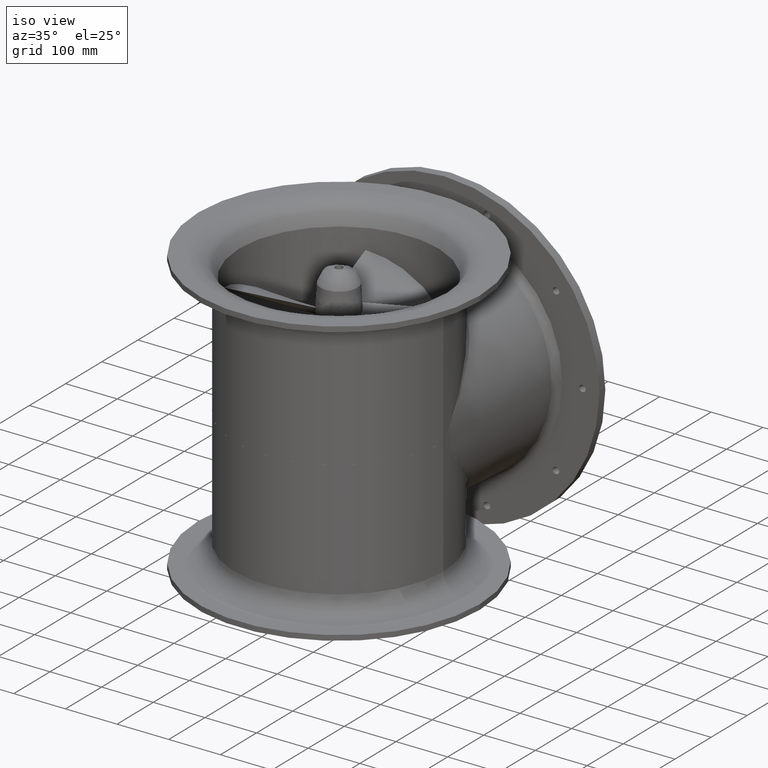
[diagram: clean part render]
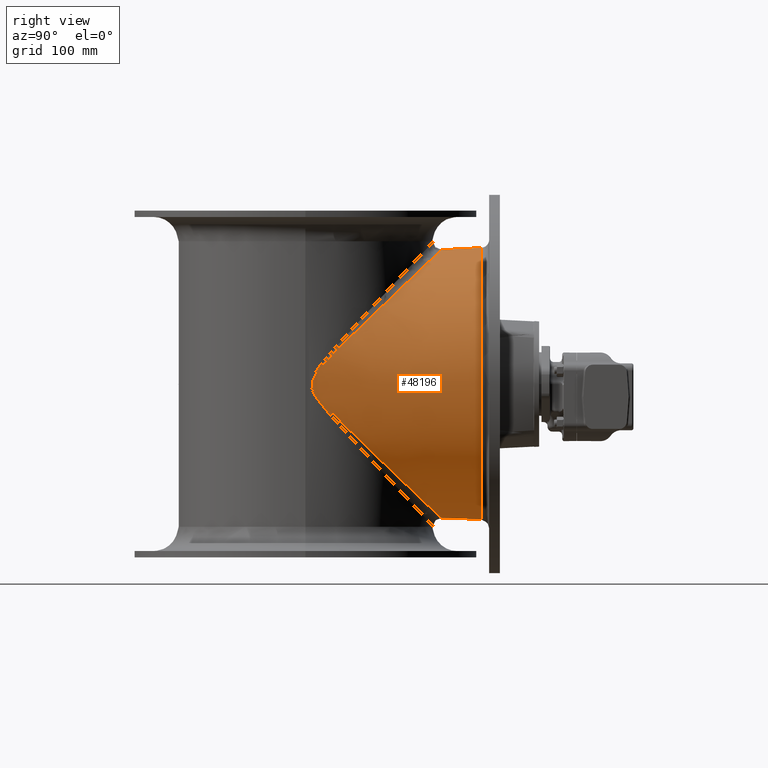
[diagram: tour spotlight — one face highlighted and labeled with its STEP entity id]
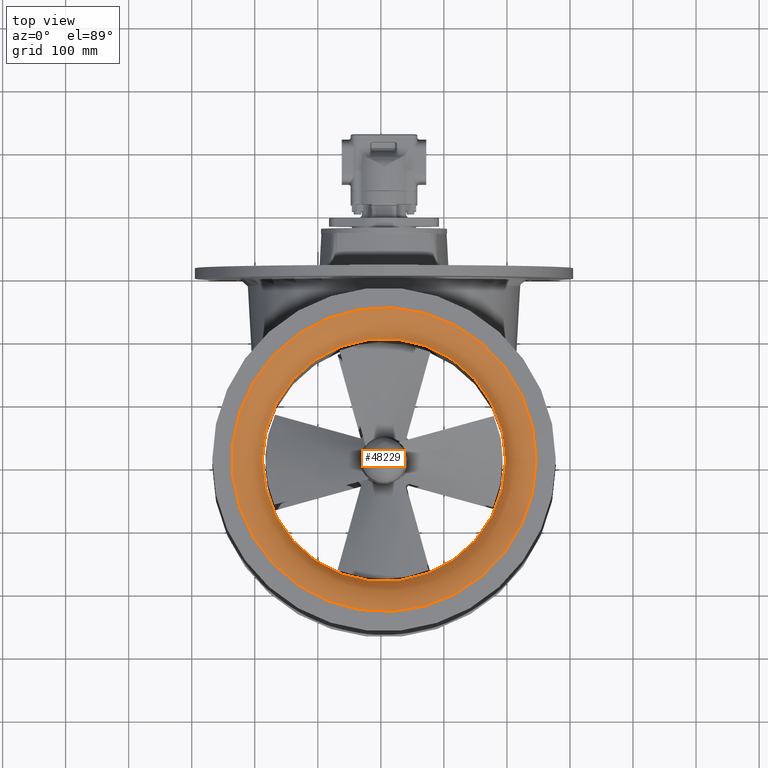
[diagram: tour spotlight — one face highlighted and labeled with its STEP entity id]
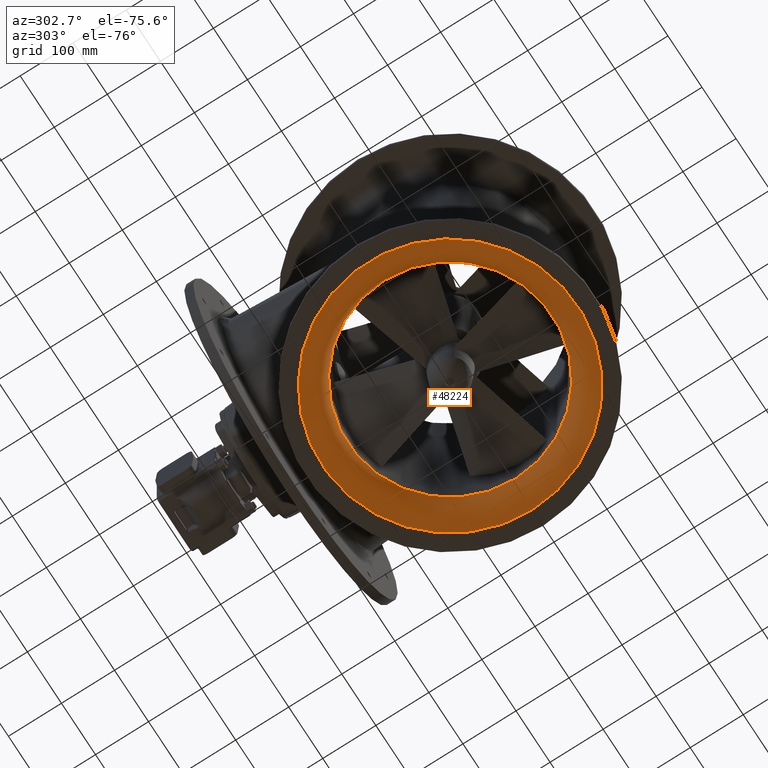
[diagram: tour spotlight — one face highlighted and labeled with its STEP entity id]
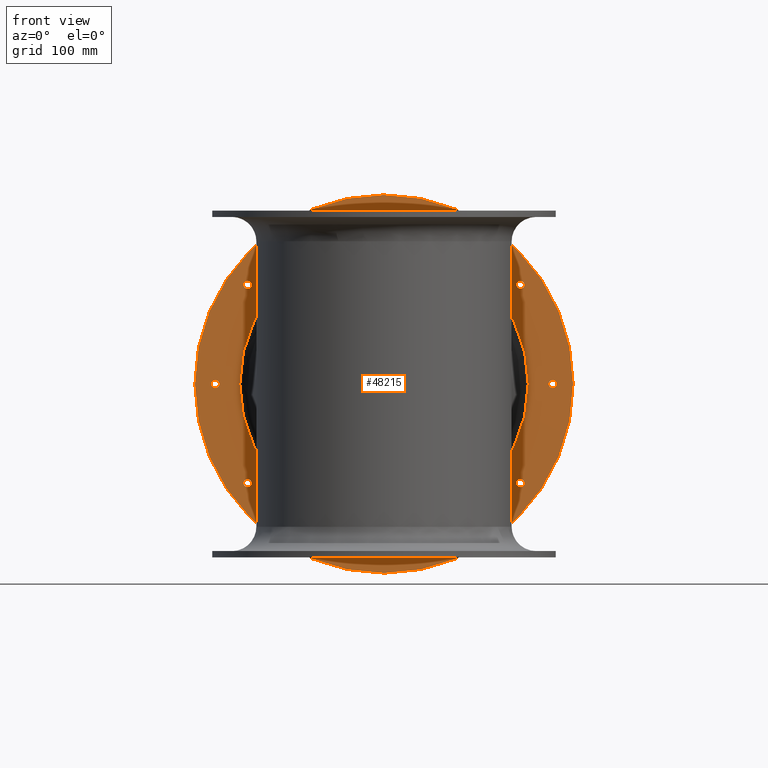
[diagram: tour spotlight — one face highlighted and labeled with its STEP entity id]
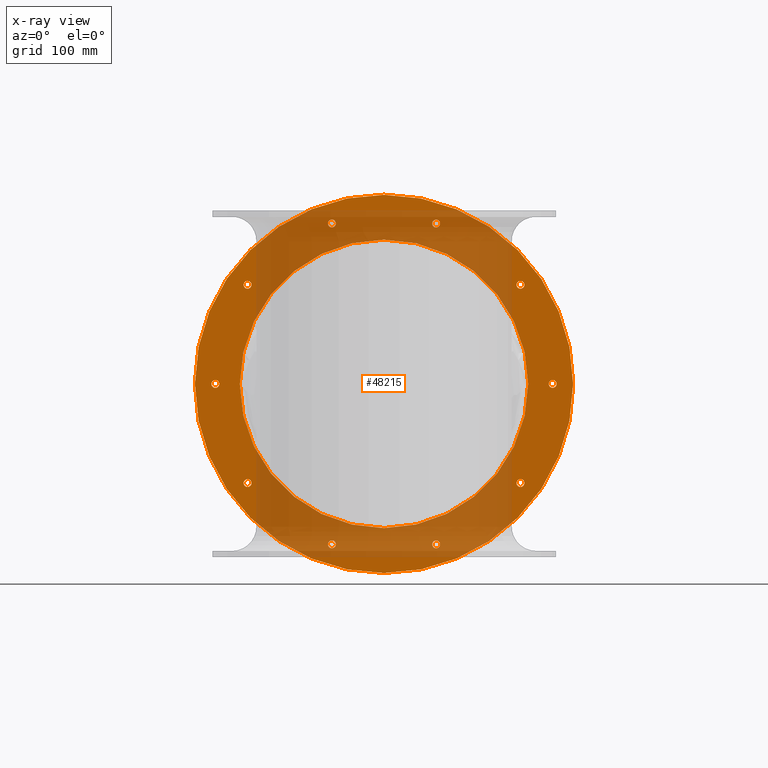
[diagram: x-ray of the same camera — body ghosted, this tour face saturated]
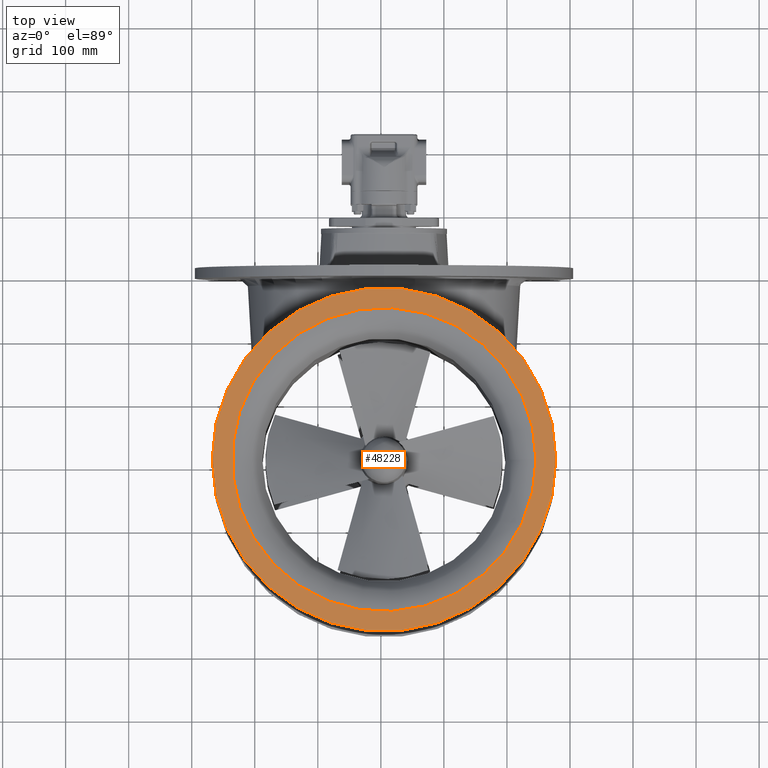
[diagram: tour spotlight — one face highlighted and labeled with its STEP entity id]
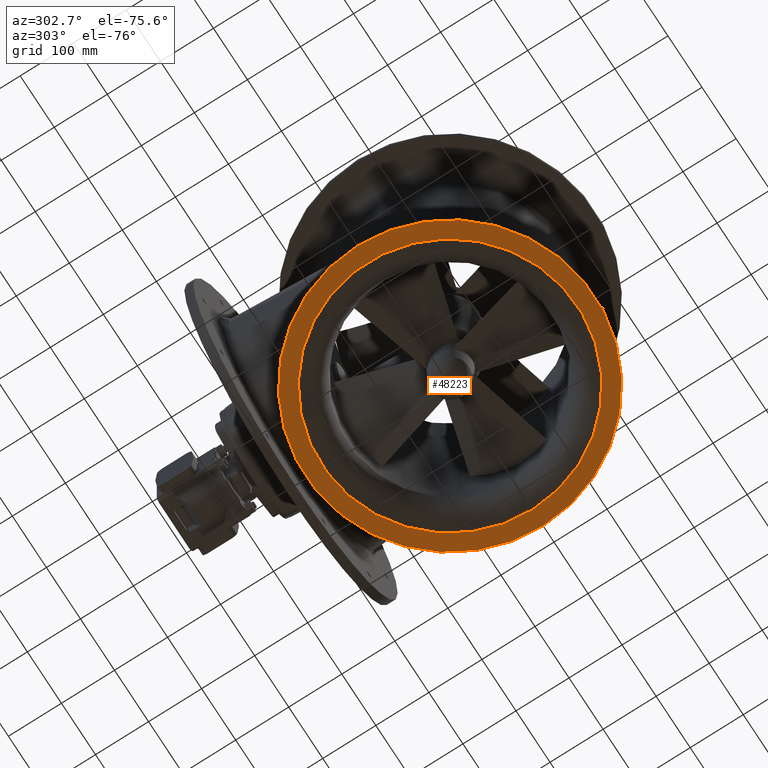
[diagram: tour spotlight — one face highlighted and labeled with its STEP entity id]
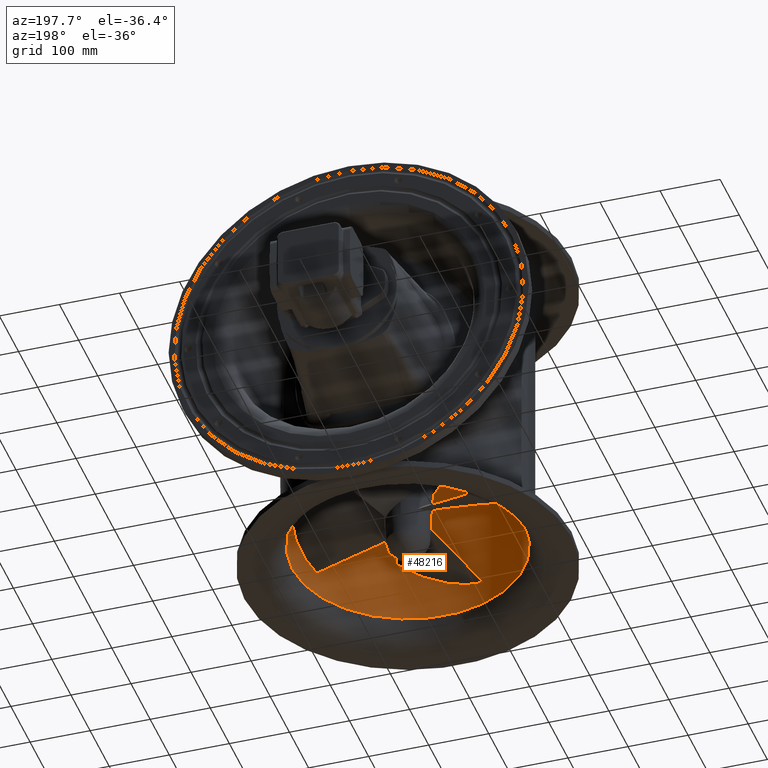
[diagram: tour spotlight — one face highlighted and labeled with its STEP entity id]
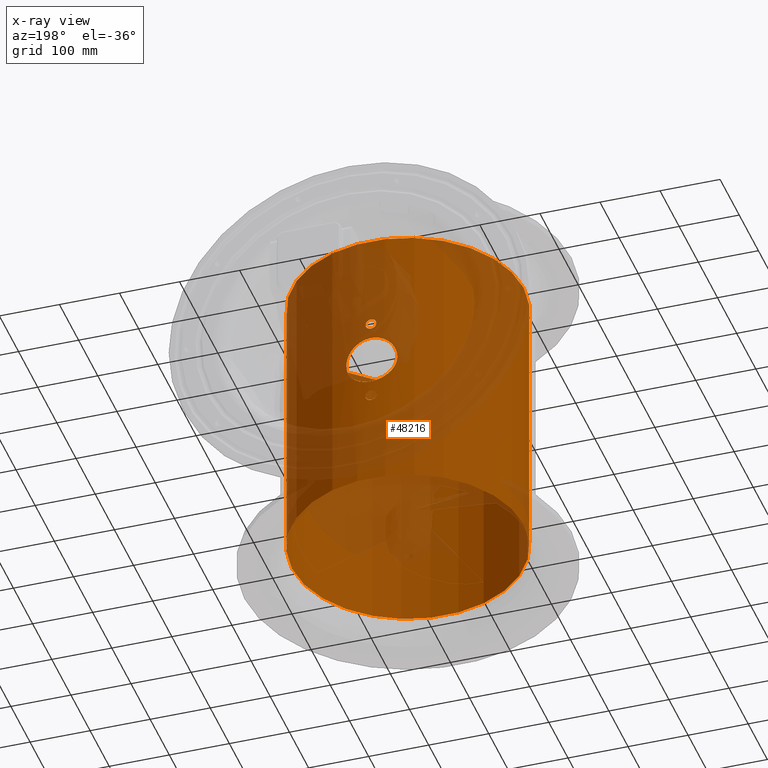
[diagram: x-ray of the same camera — body ghosted, this tour face saturated]
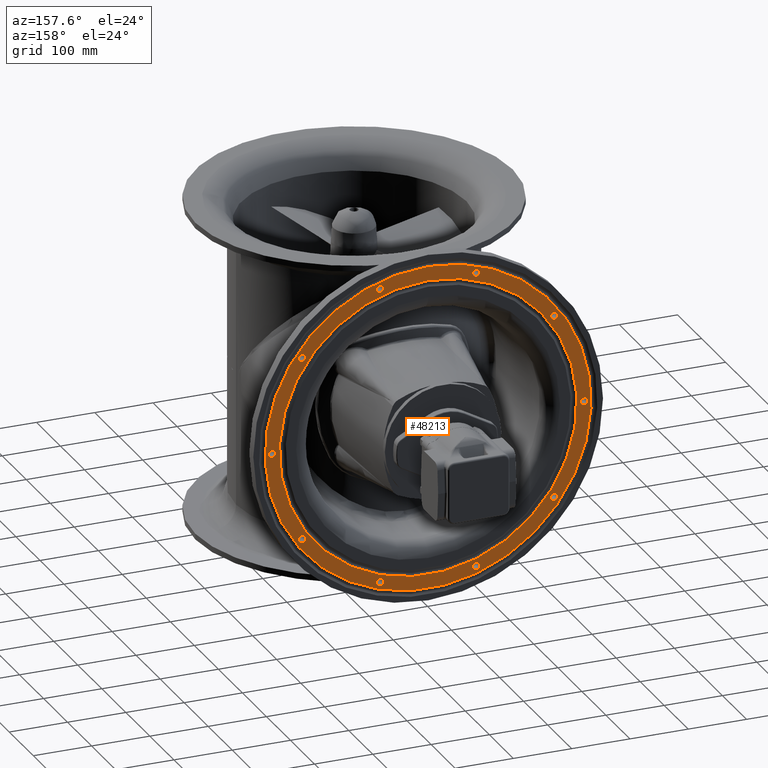
[diagram: tour spotlight — one face highlighted and labeled with its STEP entity id]
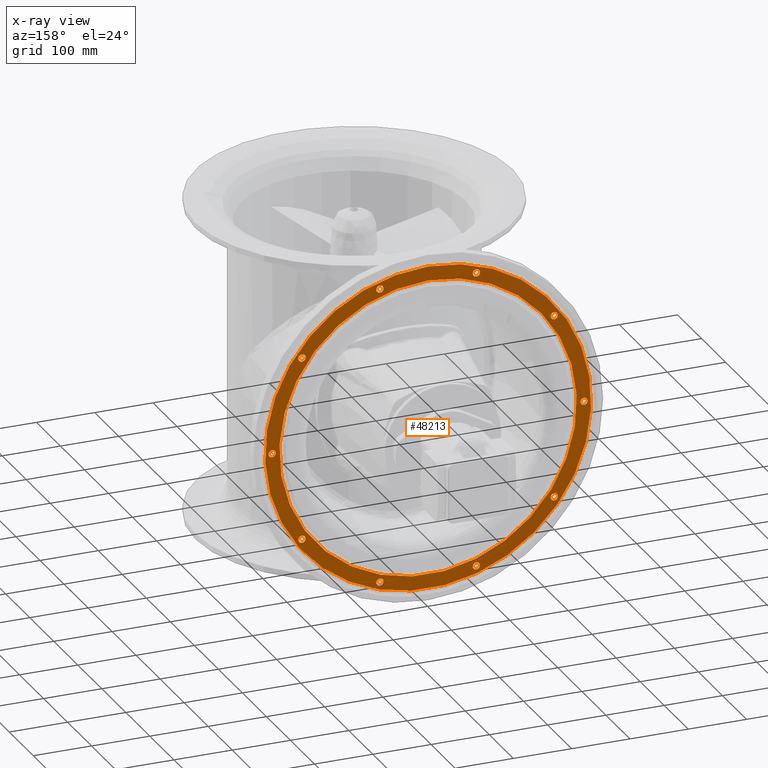
[diagram: x-ray of the same camera — body ghosted, this tour face saturated]
A machine part: a face-by-face anatomy tour. The part has 2769 B-rep faces; the first image is the clean iso view, then the 8 largest visible faces are spotlighted one at a time (largest first), each with its STEP entity span.

Face 1 — right view, entity #48196. In plain terms, the highlighted conical surface has half-angle 3 deg.
Definition (entity closure, byte-faithful):
#2536=CONICAL_SURFACE('',#50987,209.307729435213,3.00000000000005);
#4966=CIRCLE('',#50988,216.322989660961);
#11967=FACE_BOUND('',#15142,.T.);
#12358=FACE_OUTER_BOUND('',#15141,.T.);
#15141=EDGE_LOOP('',(#30528));
#15142=EDGE_LOOP('',(#30529));
#18286=B_SPLINE_CURVE_WITH_KNOTS('',3,(#69543,#69544,#69545,#69546,#69547,
#69548,#69549,#69550,#69551,#69552,#69553,#69554,#69555,#69556,#69557,#69558,
#69559,#69560,#69561,#69562,#69563,#69564,#69565,#69566,#69567,#69568,#69569,
#69570,#69571,#69572,#69573,#69574,#69575,#69576,#69577,#69578,#69579,#69580,
#69581,#69582,#69583,#69584,#69585,#69586,#69587,#69588,#69589,#69590,#69591,
#69592,#69593,#69594,#69595,#69596,#69597,#69598,#69599,#69600,#69601,#69602,
#69603,#69604,#69605,#69606,#69607,#69608,#69609,#69610,#69611,#69612,#69613,
#69614,#69615,#69616,#69617,#69618,#69619,#69620,#69621,#69622,#69623,#69624,
#69625,#69626,#69627,#69628,#69629),.UNSPECIFIED.,.T.,.F.,(4,1,1,1,1,1,
1,1,1,1,1,1,1,1,1,1,1,1,1,1,1,1,1,1,1,1,1,1,1,1,1,1,1,1,1,1,1,1,1,1,1,1,
1,1,1,1,1,1,1,1,1,1,1,1,1,1,1,1,1,1,1,1,1,1,1,1,1,1,1,1,1,1,1,1,1,1,1,1,
1,1,1,1,1,1,4),(1.775799534E-6,0.715816548714448,1.4316330974289,2.86326619485779,
4.29489929228669,5.72653238971558,8.58979858457338,11.4530647794312,15.7479640717179,
17.1795971691468,22.9061295588623,24.1786923121325,25.4512550654026,30.5415060784831,
32.4503502083883,34.3591943382935,37.2224605331513,38.1768825981039,41.9945708579143,
43.9034149878195,45.8122591177247,48.3573846242649,50.9025101308052,53.4476356373454,
54.4020577022981,57.2653238971558,61.0830121569662,64.9007004167766,68.718388676587,
69.6728107415396,72.5360769363974,74.4449210663026,75.3993431312552,75.6379486474933,
76.3537651962078,77.6263279494779,78.898890702748,79.5351720793831,80.1714534560182,
80.8077348326532,81.4440162092883,82.2393679300822,82.7165789625584,83.9891417158286,
85.8979858457338,87.8068299756389,91.6245182354493,93.5333623653546,95.4422064952597,
99.2598947550701,101.168738884975,101.88455543369,103.077583014881,106.895271274691,
108.804115404596,110.712959534501,112.621803664406,114.530647794312,116.439491924217,
118.348336054122,122.166024313932,125.983712573743,126.460923606219,127.892556703648,
129.562795317315,129.801400833553,134.891651846634,136.164214599904,136.959566320698,
137.436777353174,143.16330974289,144.594942840318,145.66866766339,147.458209035176,
148.889842132605,151.753108327463,154.616374522321,156.04800761975,157.479640717179,
157.658594854357,158.195457265893,158.911273814607,159.627090363322,159.8060445005,
160.342908687836),.UNSPECIFIED.);
#18690=VERTEX_POINT('',#69541);
#18691=VERTEX_POINT('',#70016);
#23262=EDGE_CURVE('',#18690,#18690,#18286,.T.);
#23264=EDGE_CURVE('',#18691,#18691,#4966,.T.);
#30528=ORIENTED_EDGE('',*,*,#23264,.F.);
#30529=ORIENTED_EDGE('',*,*,#23262,.F.);
#48196=ADVANCED_FACE('',(#12358,#11967),#2536,.T.);
#50987=AXIS2_PLACEMENT_3D('',#70015,#55988,#55989);
#50988=AXIS2_PLACEMENT_3D('',#70017,#55990,#55991);
#55988=DIRECTION('center_axis',(9.99200722162641E-16,1.,1.9598292006493E-16));
#55989=DIRECTION('ref_axis',(3.33066907387543E-16,-1.9598292006493E-16,
1.));
#55990=DIRECTION('center_axis',(9.99200722162641E-16,1.,1.9598292006493E-16));
#55991=DIRECTION('ref_axis',(-3.33066907387543E-16,1.9598292006493E-16,
-1.));
#69541=CARTESIAN_POINT('',(-697.259382834187,517.545340765608,-216.120631341196));
#69543=CARTESIAN_POINT('Ctrl Pts',(-697.259382834187,517.545340765608,-216.120631341196));
#69544=CARTESIAN_POINT('Ctrl Pts',(-697.259453761066,517.544268527488,-218.426861087181));
#69545=CARTESIAN_POINT('Ctrl Pts',(-697.223290652083,518.416477761175,-223.029546927006));
#69546=CARTESIAN_POINT('Ctrl Pts',(-697.011114835444,522.54513794653,-231.456147697407));
#69547=CARTESIAN_POINT('Ctrl Pts',(-696.473037192824,529.675009831317,-240.892996230794));
#69548=CARTESIAN_POINT('Ctrl Pts',(-695.378826529695,539.027078686527,-251.491790614507));
#69549=CARTESIAN_POINT('Ctrl Pts',(-693.284699094825,552.055941990582,-265.196063329569));
#69550=CARTESIAN_POINT('Ctrl Pts',(-689.490349581336,568.617352763146,-281.781693039612));
#69551=CARTESIAN_POINT('Ctrl Pts',(-681.852980058775,591.822943917063,-304.474594412703));
#69552=CARTESIAN_POINT('Ctrl Pts',(-672.79623861622,611.264214356146,-323.222705610419));
#69553=CARTESIAN_POINT('Ctrl Pts',(-657.74150452582,636.512844314268,-347.476222905435));
#69554=CARTESIAN_POINT('Ctrl Pts',(-643.848798685235,654.266125354319,-364.452705773711));
#69555=CARTESIAN_POINT('Ctrl Pts',(-627.480802196588,670.002483973558,-379.485961396403));
#69556=CARTESIAN_POINT('Ctrl Pts',(-611.392906534981,683.979440257307,-392.829747951903));
#69557=CARTESIAN_POINT('Ctrl Pts',(-591.05635490062,697.467040782862,-405.695553646974));
#69558=CARTESIAN_POINT('Ctrl Pts',(-566.404763427675,708.558641222053,-416.271736401338));
#69559=CARTESIAN_POINT('Ctrl Pts',(-546.654286866195,715.403632122071,-422.797818186267));
#69560=CARTESIAN_POINT('Ctrl Pts',(-528.810467104722,719.328092138659,-426.538854575474));
#69561=CARTESIAN_POINT('Ctrl Pts',(-504.420133297571,722.301020027829,-429.372795642243));
#69562=CARTESIAN_POINT('Ctrl Pts',(-482.635955702869,722.305497614504,-429.377052573158));
#69563=CARTESIAN_POINT('Ctrl Pts',(-458.352996444247,718.77326293257,-426.009981192032));
#69564=CARTESIAN_POINT('Ctrl Pts',(-438.693071002896,713.979532708787,-421.440097908223));
#69565=CARTESIAN_POINT('Ctrl Pts',(-418.300908054446,706.583938180415,-414.389066228113));
#69566=CARTESIAN_POINT('Ctrl Pts',(-397.694833211028,696.201958403991,-404.488634067133));
#69567=CARTESIAN_POINT('Ctrl Pts',(-383.029842210546,686.581560062513,-395.310918418394));
#69568=CARTESIAN_POINT('Ctrl Pts',(-368.621488911933,675.556610267079,-384.789274956707));
#69569=CARTESIAN_POINT('Ctrl Pts',(-352.803351312059,661.264473781163,-371.142052876725));
#69570=CARTESIAN_POINT('Ctrl Pts',(-334.66000402559,639.909272775065,-350.723249040667));
#69571=CARTESIAN_POINT('Ctrl Pts',(-318.804763600677,614.825480347582,-326.662648399105));
#69572=CARTESIAN_POINT('Ctrl Pts',(-309.845768645297,595.245407466277,-307.764937171401));
#69573=CARTESIAN_POINT('Ctrl Pts',(-303.421499680364,577.708407048823,-290.679399737141));
#69574=CARTESIAN_POINT('Ctrl Pts',(-299.487114910554,564.413587451239,-277.606407866551));
#69575=CARTESIAN_POINT('Ctrl Pts',(-296.640478803615,551.177959954166,-264.230426509587));
#69576=CARTESIAN_POINT('Ctrl Pts',(-295.444822979959,544.120846397591,-256.845810072026));
#69577=CARTESIAN_POINT('Ctrl Pts',(-294.796218088169,539.826764786902,-252.240813087288));
#69578=CARTESIAN_POINT('Ctrl Pts',(-294.122738268598,534.891873623876,-246.848466722236));
#69579=CARTESIAN_POINT('Ctrl Pts',(-293.367770228439,527.792598312215,-238.543261019092));
#69580=CARTESIAN_POINT('Ctrl Pts',(-292.944322212226,521.704113610494,-230.015938680575));
#69581=CARTESIAN_POINT('Ctrl Pts',(-292.772884908068,518.29108986458,-222.460321198523));
#69582=CARTESIAN_POINT('Ctrl Pts',(-292.727737956929,517.203525373339,-216.307891245216));
#69583=CARTESIAN_POINT('Ctrl Pts',(-292.767548475805,518.170614161159,-210.16098505059));
#69584=CARTESIAN_POINT('Ctrl Pts',(-292.901664102278,520.876357442524,-203.955709050232));
#69585=CARTESIAN_POINT('Ctrl Pts',(-293.120218637519,524.249253302153,-198.687154009218));
#69586=CARTESIAN_POINT('Ctrl Pts',(-293.528414066327,529.263913887022,-191.972426638855));
#69587=CARTESIAN_POINT('Ctrl Pts',(-294.351127634872,537.119428124676,-182.793398581395));
#69588=CARTESIAN_POINT('Ctrl Pts',(-296.101715392978,548.624767496699,-170.597118099574));
#69589=CARTESIAN_POINT('Ctrl Pts',(-299.874343193366,566.293686624258,-152.729752247837));
#69590=CARTESIAN_POINT('Ctrl Pts',(-305.374837708049,584.013738538126,-135.387631932881));
#69591=CARTESIAN_POINT('Ctrl Pts',(-312.680982167769,601.440443017237,-118.496273198426));
#69592=CARTESIAN_POINT('Ctrl Pts',(-321.283245280246,618.719622309339,-101.84482919696));
#69593=CARTESIAN_POINT('Ctrl Pts',(-331.826756676941,635.460661030583,-85.7836449244323));
#69594=CARTESIAN_POINT('Ctrl Pts',(-342.420835348387,648.870878961357,-72.9519576728321));
#69595=CARTESIAN_POINT('Ctrl Pts',(-349.165528608305,656.571564957643,-65.5879423098686));
#69596=CARTESIAN_POINT('Ctrl Pts',(-359.783351801411,667.839004784004,-54.8198196330489));
#69597=CARTESIAN_POINT('Ctrl Pts',(-374.446924907414,680.647758090663,-42.591762246363));
#69598=CARTESIAN_POINT('Ctrl Pts',(-392.832884741555,693.074292151554,-30.736251252209));
#69599=CARTESIAN_POINT('Ctrl Pts',(-407.626256954319,701.362132727733,-22.8316602908933));
#69600=CARTESIAN_POINT('Ctrl Pts',(-423.584142980245,708.562927579666,-15.9653956371804));
#69601=CARTESIAN_POINT('Ctrl Pts',(-440.545166303239,714.426560875124,-10.3750178121728));
#69602=CARTESIAN_POINT('Ctrl Pts',(-458.171435148606,718.737296088797,-6.26557148085364));
#69603=CARTESIAN_POINT('Ctrl Pts',(-482.473665371232,722.296091094746,-2.87317402402785));
#69604=CARTESIAN_POINT('Ctrl Pts',(-513.567117747045,722.3147686167,-2.85537532475782));
#69605=CARTESIAN_POINT('Ctrl Pts',(-539.195096377077,717.29185449026,-7.64341947836709));
#69606=CARTESIAN_POINT('Ctrl Pts',(-556.32619597464,712.047882382422,-12.6428366020885));
#69607=CARTESIAN_POINT('Ctrl Pts',(-566.788287226551,708.316037477286,-16.2008769410598));
#69608=CARTESIAN_POINT('Ctrl Pts',(-576.124400090648,704.184794389411,-20.1401012718886));
#69609=CARTESIAN_POINT('Ctrl Pts',(-594.963284428257,694.863199570409,-29.0296891400713));
#69610=CARTESIAN_POINT('Ctrl Pts',(-611.118756777507,684.178010161855,-39.2216257787983));
#69611=CARTESIAN_POINT('Ctrl Pts',(-626.270117053458,671.062612879001,-51.7434869227064));
#69612=CARTESIAN_POINT('Ctrl Pts',(-631.370162014209,666.264939306498,-56.3256511764401));
#69613=CARTESIAN_POINT('Ctrl Pts',(-644.972537124876,652.803365044351,-69.1871017321091));
#69614=CARTESIAN_POINT('Ctrl Pts',(-657.551002514567,636.780431427853,-84.5102134514968));
#69615=CARTESIAN_POINT('Ctrl Pts',(-668.400121302126,618.651333259059,-101.921356838853));
#69616=CARTESIAN_POINT('Ctrl Pts',(-673.563952521008,609.091661169955,-111.120825735582));
#69617=CARTESIAN_POINT('Ctrl Pts',(-678.193880400863,599.399207803278,-120.475296896408));
#69618=CARTESIAN_POINT('Ctrl Pts',(-683.954129647876,585.426007760174,-134.019707498622));
#69619=CARTESIAN_POINT('Ctrl Pts',(-689.450329189097,568.771134336124,-150.311925122076));
#69620=CARTESIAN_POINT('Ctrl Pts',(-693.276084471154,552.104291666992,-166.987911016679));
#69621=CARTESIAN_POINT('Ctrl Pts',(-695.369520552334,539.096402178258,-180.685789352746));
#69622=CARTESIAN_POINT('Ctrl Pts',(-696.149397338029,532.435405503925,-188.206774492625));
#69623=CARTESIAN_POINT('Ctrl Pts',(-696.570882847961,527.998974452179,-193.700284806355));
#69624=CARTESIAN_POINT('Ctrl Pts',(-696.816514876658,525.117068435687,-197.464144948788));
#69625=CARTESIAN_POINT('Ctrl Pts',(-697.06490727489,521.481227873748,-202.91084194715));
#69626=CARTESIAN_POINT('Ctrl Pts',(-697.183610699141,519.196288436782,-207.63951826745));
#69627=CARTESIAN_POINT('Ctrl Pts',(-697.245970869185,517.866302476019,-212.084784757044));
#69628=CARTESIAN_POINT('Ctrl Pts',(-697.2593296371,517.546144992519,-214.390949000829));
#69629=CARTESIAN_POINT('Ctrl Pts',(-697.259382834187,517.545340765608,-216.120631341196));
#70015=CARTESIAN_POINT('Origin',(-495.000607936234,652.050225593334,-216.120632227869));
#70016=CARTESIAN_POINT('',(-495.000607936234,785.909364860828,0.202357433092821));
#70017=CARTESIAN_POINT('Origin',(-495.000607936234,785.909364860828,-216.120632227869));

Face 2 — top view, entity #48229. In plain terms, the highlighted toroidal blend (fillet) surface has major radius 241.1 mm and minor (blend) radius 48.6 mm.
Definition (entity closure, byte-faithful):
#2431=TOROIDAL_SURFACE('',#51062,241.1,48.6);
#4999=CIRCLE('',#51040,193.);
#5008=CIRCLE('',#51061,241.1);
#12023=FACE_BOUND('',#15231,.T.);
#12391=FACE_OUTER_BOUND('',#15230,.T.);
#15230=EDGE_LOOP('',(#30620));
#15231=EDGE_LOOP('',(#30621));
#18724=VERTEX_POINT('',#70720);
#18733=VERTEX_POINT('',#70750);
#23298=EDGE_CURVE('',#18724,#18724,#4999,.T.);
#23307=EDGE_CURVE('',#18733,#18733,#5008,.T.);
#30620=ORIENTED_EDGE('',*,*,#23307,.T.);
#30621=ORIENTED_EDGE('',*,*,#23298,.T.);
#48229=ADVANCED_FACE('',(#12391,#12023),#2431,.T.);
#51040=AXIS2_PLACEMENT_3D('',#70721,#56094,#56095);
#51061=AXIS2_PLACEMENT_3D('',#70751,#56136,#56137);
#51062=AXIS2_PLACEMENT_3D('',#70752,#56138,#56139);
#56094=DIRECTION('center_axis',(-3.33066907387543E-16,1.9598292006493E-16,
-1.));
#56095=DIRECTION('ref_axis',(-1.,9.99200722162641E-16,3.33066907387544E-16));
#56136=DIRECTION('center_axis',(3.33066907387543E-16,-1.9598292006493E-16,
1.));
#56137=DIRECTION('ref_axis',(1.,-9.99200722162641E-16,-3.33066907387544E-16));
#56138=DIRECTION('center_axis',(3.33066907387543E-16,-1.9598292006493E-16,
1.));
#56139=DIRECTION('ref_axis',(-9.81073849858613E-16,-1.,-1.96214769971723E-16));
#70720=CARTESIAN_POINT('',(-302.000607936234,506.355165407791,17.2327841986085));
#70721=CARTESIAN_POINT('Origin',(-495.000607936234,506.355165407791,17.2327841986086));
#70750=CARTESIAN_POINT('',(-253.900607936234,506.355165407791,58.8793677721313));
#70751=CARTESIAN_POINT('Origin',(-495.000607936234,506.355165407791,58.8793677721314));
#70752=CARTESIAN_POINT('Origin',(-495.000607936234,506.355165407791,10.2793677721315));

Face 3 — auxiliary view, entity #48224. In plain terms, the highlighted toroidal blend (fillet) surface has major radius 241.1 mm and minor (blend) radius 48.6 mm.
Definition (entity closure, byte-faithful):
#2429=TOROIDAL_SURFACE('',#51053,241.099999999999,48.5999999999989);
#4998=CIRCLE('',#51039,193.);
#5004=CIRCLE('',#51052,241.1);
#12018=FACE_BOUND('',#15221,.T.);
#12386=FACE_OUTER_BOUND('',#15220,.T.);
#15220=EDGE_LOOP('',(#30610));
#15221=EDGE_LOOP('',(#30611));
#18723=VERTEX_POINT('',#70718);
#18729=VERTEX_POINT('',#70737);
#23297=EDGE_CURVE('',#18723,#18723,#4998,.T.);
#23303=EDGE_CURVE('',#18729,#18729,#5004,.T.);
#30610=ORIENTED_EDGE('',*,*,#23303,.F.);
#30611=ORIENTED_EDGE('',*,*,#23297,.T.);
#48224=ADVANCED_FACE('',(#12386,#12018),#2429,.T.);
#51039=AXIS2_PLACEMENT_3D('',#70719,#56092,#56093);
#51052=AXIS2_PLACEMENT_3D('',#70738,#56118,#56119);
#51053=AXIS2_PLACEMENT_3D('',#70739,#56120,#56121);
#56092=DIRECTION('center_axis',(3.33066907387543E-16,-1.9598292006493E-16,
1.));
#56093=DIRECTION('ref_axis',(-1.,9.99200722162641E-16,3.33066907387544E-16));
#56118=DIRECTION('center_axis',(3.33066907387543E-16,-1.9598292006493E-16,
1.));
#56119=DIRECTION('ref_axis',(1.,-9.99200722162641E-16,-3.33066907387544E-16));
#56120=DIRECTION('center_axis',(3.30322118429413E-16,-3.59439794889169E-15,
1.));
#56121=DIRECTION('ref_axis',(-9.81073849858619E-16,-1.,-3.53186585949103E-15));
#70718=CARTESIAN_POINT('',(-302.000607936234,506.355165407791,-449.474048654346));
#70719=CARTESIAN_POINT('Origin',(-495.000607936234,506.355165407791,-449.474048654346));
#70737=CARTESIAN_POINT('',(-253.900607936234,506.355165407791,-491.120632227869));
#70738=CARTESIAN_POINT('Origin',(-495.000607936234,506.355165407791,-491.120632227869));
#70739=CARTESIAN_POINT('Origin',(-495.000607936234,506.355165407794,-442.52063222787));

Face 4 — front view, entity #48215. An x-ray twin of the same camera follows (body ghosted, this face saturated) — the face is partly hidden behind the body. In plain terms, the highlighted planar face has unit normal (-0, -1, -0).
Definition (entity closure, byte-faithful):
#3251=PLANE('',#51036);
#4971=CIRCLE('',#50996,6.25);
#4973=CIRCLE('',#50999,6.25);
#4975=CIRCLE('',#51002,6.25);
#4977=CIRCLE('',#51005,6.25);
#4979=CIRCLE('',#51008,6.25);
#4981=CIRCLE('',#51011,6.25);
#4983=CIRCLE('',#51014,6.25);
#4985=CIRCLE('',#51017,6.25);
#4987=CIRCLE('',#51020,6.25);
#4989=CIRCLE('',#51023,6.25);
#4996=CIRCLE('',#51035,228.805858845394);
#4997=CIRCLE('',#51037,300.);
#11996=FACE_BOUND('',#15190,.T.);
#11997=FACE_BOUND('',#15191,.T.);
#11998=FACE_BOUND('',#15192,.T.);
#11999=FACE_BOUND('',#15193,.T.);
#12000=FACE_BOUND('',#15194,.T.);
#12001=FACE_BOUND('',#15195,.T.);
#12002=FACE_BOUND('',#15196,.T.);
#12003=FACE_BOUND('',#15197,.T.);
#12004=FACE_BOUND('',#15198,.T.);
#12005=FACE_BOUND('',#15199,.T.);
#12006=FACE_BOUND('',#15200,.T.);
#12377=FACE_OUTER_BOUND('',#15189,.T.);
#15189=EDGE_LOOP('',(#30579));
#15190=EDGE_LOOP('',(#30580));
#15191=EDGE_LOOP('',(#30581));
#15192=EDGE_LOOP('',(#30582));
#15193=EDGE_LOOP('',(#30583));
#15194=EDGE_LOOP('',(#30584));
#15195=EDGE_LOOP('',(#30585));
#15196=EDGE_LOOP('',(#30586));
#15197=EDGE_LOOP('',(#30587));
#15198=EDGE_LOOP('',(#30588));
#15199=EDGE_LOOP('',(#30589));
#15200=EDGE_LOOP('',(#30590));
#18696=VERTEX_POINT('',#70648);
#18698=VERTEX_POINT('',#70653);
#18700=VERTEX_POINT('',#70658);
#18702=VERTEX_POINT('',#70663);
#18704=VERTEX_POINT('',#70668);
#18706=VERTEX_POINT('',#70673);
#18708=VERTEX_POINT('',#70678);
#18710=VERTEX_POINT('',#70683);
#18712=VERTEX_POINT('',#70688);
#18714=VERTEX_POINT('',#70693);
#18721=VERTEX_POINT('',#70712);
#18722=VERTEX_POINT('',#70715);
#23270=EDGE_CURVE('',#18696,#18696,#4971,.T.);
#23272=EDGE_CURVE('',#18698,#18698,#4973,.T.);
#23274=EDGE_CURVE('',#18700,#18700,#4975,.T.);
#23276=EDGE_CURVE('',#18702,#18702,#4977,.T.);
#23278=EDGE_CURVE('',#18704,#18704,#4979,.T.);
#23280=EDGE_CURVE('',#18706,#18706,#4981,.T.);
#23282=EDGE_CURVE('',#18708,#18708,#4983,.T.);
#23284=EDGE_CURVE('',#18710,#18710,#4985,.T.);
#23286=EDGE_CURVE('',#18712,#18712,#4987,.T.);
#23288=EDGE_CURVE('',#18714,#18714,#4989,.T.);
#23295=EDGE_CURVE('',#18721,#18721,#4996,.T.);
#23296=EDGE_CURVE('',#18722,#18722,#4997,.T.);
#30579=ORIENTED_EDGE('',*,*,#23296,.F.);
#30580=ORIENTED_EDGE('',*,*,#23270,.T.);
#30581=ORIENTED_EDGE('',*,*,#23272,.T.);
#30582=ORIENTED_EDGE('',*,*,#23274,.T.);
#30583=ORIENTED_EDGE('',*,*,#23276,.T.);
#30584=ORIENTED_EDGE('',*,*,#23278,.T.);
#30585=ORIENTED_EDGE('',*,*,#23280,.T.);
#30586=ORIENTED_EDGE('',*,*,#23282,.T.);
#30587=ORIENTED_EDGE('',*,*,#23284,.T.);
#30588=ORIENTED_EDGE('',*,*,#23286,.T.);
#30589=ORIENTED_EDGE('',*,*,#23288,.T.);
#30590=ORIENTED_EDGE('',*,*,#23295,.F.);
#48215=ADVANCED_FACE('',(#12377,#11996,#11997,#11998,#11999,#12000,#12001,
#12002,#12003,#12004,#12005,#12006),#3251,.T.);
#50996=AXIS2_PLACEMENT_3D('',#70649,#56006,#56007);
#50999=AXIS2_PLACEMENT_3D('',#70654,#56012,#56013);
#51002=AXIS2_PLACEMENT_3D('',#70659,#56018,#56019);
#51005=AXIS2_PLACEMENT_3D('',#70664,#56024,#56025);
#51008=AXIS2_PLACEMENT_3D('',#70669,#56030,#56031);
#51011=AXIS2_PLACEMENT_3D('',#70674,#56036,#56037);
#51014=AXIS2_PLACEMENT_3D('',#70679,#56042,#56043);
#51017=AXIS2_PLACEMENT_3D('',#70684,#56048,#56049);
#51020=AXIS2_PLACEMENT_3D('',#70689,#56054,#56055);
#51023=AXIS2_PLACEMENT_3D('',#70694,#56060,#56061);
#51035=AXIS2_PLACEMENT_3D('',#70713,#56084,#56085);
#51036=AXIS2_PLACEMENT_3D('',#70714,#56086,#56087);
#51037=AXIS2_PLACEMENT_3D('',#70716,#56088,#56089);
#56006=DIRECTION('center_axis',(9.99200722162641E-16,1.,1.9598292006493E-16));
#56007=DIRECTION('ref_axis',(0.587785252292473,-4.28761935627434E-16,-0.809016994374948));
#56012=DIRECTION('center_axis',(9.99200722162641E-16,1.,1.9598292006493E-16));
#56013=DIRECTION('ref_axis',(0.951056516295154,-8.89734304992314E-16,-0.309016994374947));
#56018=DIRECTION('center_axis',(9.99200722162641E-16,1.,1.9598292006493E-16));
#56019=DIRECTION('ref_axis',(0.951056516295154,-1.01085841080689E-15,0.309016994374948));
#56024=DIRECTION('center_axis',(9.99200722162641E-16,1.,1.9598292006493E-16));
#56025=DIRECTION('ref_axis',(0.587785252292473,-7.45868961506944E-16,0.809016994374947));
#56030=DIRECTION('center_axis',(9.99200722162641E-16,1.,1.9598292006493E-16));
#56031=DIRECTION('ref_axis',(3.33066907387543E-16,-1.9598292006493E-16,
1.));
#56036=DIRECTION('center_axis',(9.99200722162641E-16,1.,1.9598292006493E-16));
#56037=DIRECTION('ref_axis',(-0.587785252292473,4.28761935627434E-16,0.809016994374948));
#56042=DIRECTION('center_axis',(9.99200722162641E-16,1.,1.9598292006493E-16));
#56043=DIRECTION('ref_axis',(-0.951056516295154,8.89734304992314E-16,0.309016994374947));
#56048=DIRECTION('center_axis',(9.99200722162641E-16,1.,1.9598292006493E-16));
#56049=DIRECTION('ref_axis',(-0.951056516295154,1.01085841080689E-15,-0.309016994374947));
#56054=DIRECTION('center_axis',(9.99200722162641E-16,1.,1.9598292006493E-16));
#56055=DIRECTION('ref_axis',(-0.587785252292473,7.45868961506945E-16,-0.809016994374947));
#56060=DIRECTION('center_axis',(9.99200722162641E-16,1.,1.9598292006493E-16));
#56061=DIRECTION('ref_axis',(-3.33066907387543E-16,1.9598292006493E-16,
-1.));
#56084=DIRECTION('center_axis',(-9.99200722162641E-16,-1.,-1.9598292006493E-16));
#56085=DIRECTION('ref_axis',(-3.33066907387543E-16,1.9598292006493E-16,
-1.));
#56086=DIRECTION('center_axis',(-9.99200722162641E-16,-1.,-1.9598292006493E-16));
#56087=DIRECTION('ref_axis',(0.,0.,-1.));
#56088=DIRECTION('center_axis',(9.99200722162641E-16,1.,1.9598292006493E-16));
#56089=DIRECTION('ref_axis',(3.33066907387543E-16,-1.9598292006493E-16,
1.));
#70648=CARTESIAN_POINT('',(-282.215555110848,797.755165407791,-53.7978171669845));
#70649=CARTESIAN_POINT('Origin',(-278.54189728402,797.755165407791,-58.8541733818279));
#70653=CARTESIAN_POINT('',(-418.264840854912,797.755165407791,40.2731996902051));
#70654=CARTESIAN_POINT('Origin',(-412.320737628067,797.755165407791,38.3418434753616));
#70658=CARTESIAN_POINT('',(-583.624581471246,797.755165407791,36.4104872605184));
#70659=CARTESIAN_POINT('Origin',(-577.680478244401,797.755165407791,38.3418434753618));
#70663=CARTESIAN_POINT('',(-715.132976415276,797.755165407791,-63.9105295966713));
#70664=CARTESIAN_POINT('Origin',(-711.459318588448,797.755165407791,-58.8541733818279));
#70668=CARTESIAN_POINT('',(-762.558288624329,797.755165407792,-222.370632227868));
#70669=CARTESIAN_POINT('Origin',(-762.558288624329,797.755165407792,-216.120632227868));
#70673=CARTESIAN_POINT('',(-707.78566076162,797.755165407792,-378.443447288752));
#70674=CARTESIAN_POINT('Origin',(-711.459318588448,797.755165407792,-373.387091073909));
#70678=CARTESIAN_POINT('',(-571.736375017556,797.755165407791,-472.514464145942));
#70679=CARTESIAN_POINT('Origin',(-577.680478244401,797.755165407791,-470.583107931099));
#70683=CARTESIAN_POINT('',(-406.376634401223,797.755165407791,-468.651751716255));
#70684=CARTESIAN_POINT('Origin',(-412.320737628067,797.755165407791,-470.583107931099));
#70688=CARTESIAN_POINT('',(-274.868239457192,797.755165407791,-368.330734859066));
#70689=CARTESIAN_POINT('Origin',(-278.54189728402,797.755165407791,-373.387091073909));
#70693=CARTESIAN_POINT('',(-227.442927248139,797.755165407791,-209.870632227869));
#70694=CARTESIAN_POINT('Origin',(-227.442927248139,797.755165407791,-216.120632227869));
#70712=CARTESIAN_POINT('',(-495.000607936234,797.755165407791,12.6852266175251));
#70713=CARTESIAN_POINT('Origin',(-495.000607936234,797.755165407791,-216.120632227869));
#70714=CARTESIAN_POINT('Origin',(-495.000607936234,797.755165407791,42.3512686528603));
#70715=CARTESIAN_POINT('',(-495.000607936234,797.755165407791,83.8793677721315));
#70716=CARTESIAN_POINT('Origin',(-495.000607936234,797.755165407791,-216.120632227869));

Face 5 — top view, entity #48228. In plain terms, the highlighted planar face has unit normal (0, -0, 1).
Definition (entity closure, byte-faithful):
#3256=PLANE('',#51060);
#5007=CIRCLE('',#51059,272.5);
#5008=CIRCLE('',#51061,241.1);
#12022=FACE_BOUND('',#15229,.T.);
#12390=FACE_OUTER_BOUND('',#15228,.T.);
#15228=EDGE_LOOP('',(#30618));
#15229=EDGE_LOOP('',(#30619));
#18732=VERTEX_POINT('',#70747);
#18733=VERTEX_POINT('',#70750);
#23306=EDGE_CURVE('',#18732,#18732,#5007,.T.);
#23307=EDGE_CURVE('',#18733,#18733,#5008,.T.);
#30618=ORIENTED_EDGE('',*,*,#23306,.T.);
#30619=ORIENTED_EDGE('',*,*,#23307,.F.);
#48228=ADVANCED_FACE('',(#12390,#12022),#3256,.T.);
#51059=AXIS2_PLACEMENT_3D('',#70748,#56132,#56133);
#51060=AXIS2_PLACEMENT_3D('',#70749,#56134,#56135);
#51061=AXIS2_PLACEMENT_3D('',#70751,#56136,#56137);
#56132=DIRECTION('center_axis',(3.33066907387543E-16,-1.9598292006493E-16,
1.));
#56133=DIRECTION('ref_axis',(1.,-9.99200722162641E-16,-3.33066907387544E-16));
#56134=DIRECTION('center_axis',(3.33066907387543E-16,-1.9598292006493E-16,
1.));
#56135=DIRECTION('ref_axis',(0.,-1.,0.));
#56136=DIRECTION('center_axis',(3.33066907387543E-16,-1.9598292006493E-16,
1.));
#56137=DIRECTION('ref_axis',(1.,-9.99200722162641E-16,-3.33066907387544E-16));
#70747=CARTESIAN_POINT('',(-222.500607936234,506.355165407791,58.8793677721313));
#70748=CARTESIAN_POINT('Origin',(-495.000607936234,506.355165407791,58.8793677721314));
#70749=CARTESIAN_POINT('Origin',(-238.200607936234,506.355165407791,58.8793677721313));
#70750=CARTESIAN_POINT('',(-253.900607936234,506.355165407791,58.8793677721313));
#70751=CARTESIAN_POINT('Origin',(-495.000607936234,506.355165407791,58.8793677721314));

Face 6 — auxiliary view, entity #48223. In plain terms, the highlighted planar face has unit normal (-0, 0, -1).
Definition (entity closure, byte-faithful):
#3254=PLANE('',#51051);
#5003=CIRCLE('',#51050,272.5);
#5004=CIRCLE('',#51052,241.1);
#12017=FACE_BOUND('',#15219,.T.);
#12385=FACE_OUTER_BOUND('',#15218,.T.);
#15218=EDGE_LOOP('',(#30608));
#15219=EDGE_LOOP('',(#30609));
#18728=VERTEX_POINT('',#70734);
#18729=VERTEX_POINT('',#70737);
#23302=EDGE_CURVE('',#18728,#18728,#5003,.T.);
#23303=EDGE_CURVE('',#18729,#18729,#5004,.T.);
#30608=ORIENTED_EDGE('',*,*,#23302,.F.);
#30609=ORIENTED_EDGE('',*,*,#23303,.T.);
#48223=ADVANCED_FACE('',(#12385,#12017),#3254,.T.);
#51050=AXIS2_PLACEMENT_3D('',#70735,#56114,#56115);
#51051=AXIS2_PLACEMENT_3D('',#70736,#56116,#56117);
#51052=AXIS2_PLACEMENT_3D('',#70738,#56118,#56119);
#56114=DIRECTION('center_axis',(3.33066907387543E-16,-1.9598292006493E-16,
1.));
#56115=DIRECTION('ref_axis',(1.,-9.99200722162641E-16,-3.33066907387544E-16));
#56116=DIRECTION('center_axis',(-3.33066907387543E-16,1.9598292006493E-16,
-1.));
#56117=DIRECTION('ref_axis',(0.,1.,0.));
#56118=DIRECTION('center_axis',(3.33066907387543E-16,-1.9598292006493E-16,
1.));
#56119=DIRECTION('ref_axis',(1.,-9.99200722162641E-16,-3.33066907387544E-16));
#70734=CARTESIAN_POINT('',(-222.500607936234,506.355165407791,-491.120632227869));
#70735=CARTESIAN_POINT('Origin',(-495.000607936234,506.355165407791,-491.120632227869));
#70736=CARTESIAN_POINT('Origin',(-222.500607936234,506.355165407791,-491.120632227869));
#70737=CARTESIAN_POINT('',(-253.900607936234,506.355165407791,-491.120632227869));
#70738=CARTESIAN_POINT('Origin',(-495.000607936234,506.355165407791,-491.120632227869));

Face 7 — auxiliary view, entity #48216. An x-ray twin of the same camera follows (body ghosted, this face saturated) — the face is partly hidden behind the body. In plain terms, the highlighted cylindrical surface (bore or boss wall) has radius 193 mm, axis along (0, -0, 1).
Definition (entity closure, byte-faithful):
#4998=CIRCLE('',#51039,193.);
#4999=CIRCLE('',#51040,193.);
#12007=FACE_BOUND('',#15202,.T.);
#12008=FACE_BOUND('',#15203,.T.);
#12009=FACE_BOUND('',#15204,.T.);
#12010=FACE_BOUND('',#15205,.T.);
#12378=FACE_OUTER_BOUND('',#15201,.T.);
#15201=EDGE_LOOP('',(#30591));
#15202=EDGE_LOOP('',(#30592));
#15203=EDGE_LOOP('',(#30593));
#15204=EDGE_LOOP('',(#30594));
#15205=EDGE_LOOP('',(#30595));
#18260=B_SPLINE_CURVE_WITH_KNOTS('',3,(#68476,#68477,#68478,#68479,#68480,
#68481,#68482,#68483,#68484,#68485,#68486,#68487,#68488,#68489,#68490,#68491,
#68492,#68493,#68494,#68495,#68496,#68497,#68498,#68499,#68500,#68501,#68502,
#68503,#68504,#68505,#68506,#68507,#68508,#68509,#68510,#68511,#68512,#68513,
#68514,#68515,#68516,#68517,#68518,#68519,#68520,#68521,#68522,#68523,#68524,
#68525,#68526,#68527,#68528,#68529,#68530,#68531,#68532,#68533,#68534,#68535,
#68536,#68537,#68538,#68539,#68540,#68541),.UNSPECIFIED.,.T.,.F.,(4,2,2,
2,2,2,2,2,2,2,2,2,2,2,2,2,2,2,2,2,2,2,2,2,2,2,2,2,2,2,2,2,4),(-25.7055913179414,
-24.9022582402887,-24.0989251626359,-23.2955920849832,-22.4922590073304,
-21.6889926276118,-20.8857262478932,-20.0824598681747,-19.2791934884561,
-18.4759271087375,-17.6726607290189,-16.8693943493003,-16.0661279695818,
-15.262794891929,-14.4594618142762,-13.6561287366235,-12.8527956589707,
-12.049462581318,-11.2461295036652,-10.4427964260124,-9.63946334835969,
-8.83619696864111,-8.03293058892253,-7.22966420920394,-6.42639782948536,
-5.62313144976678,-4.8198650700482,-4.01659869032962,-3.21333231061104,
-2.40999923295828,-1.60666615530552,-0.80333307765276,0.),.UNSPECIFIED.);
#18282=B_SPLINE_CURVE_WITH_KNOTS('',3,(#68751,#68752,#68753,#68754,#68755,
#68756,#68757,#68758,#68759,#68760,#68761,#68762,#68763,#68764,#68765,#68766,
#68767,#68768,#68769,#68770,#68771,#68772,#68773,#68774,#68775,#68776,#68777,
#68778,#68779,#68780,#68781,#68782,#68783,#68784),.UNSPECIFIED.,.T.,.F.,
(4,2,2,2,2,2,2,2,2,2,2,2,2,2,2,2,4),(-5.42513223136547,-5.08606143981724,
-4.746990648269,-4.40791991089655,-4.06884917352411,-3.72977843615166,-3.39070769877921,
-3.05163690723097,-2.71256611568274,-2.3734953241345,-2.03442453258627,
-1.69535379521382,-1.35628305784137,-1.01721232046892,-0.678141583096472,
-0.339070791548236,0.),.UNSPECIFIED.);
#18284=B_SPLINE_CURVE_WITH_KNOTS('',3,(#68822,#68823,#68824,#68825,#68826,
#68827,#68828,#68829,#68830,#68831,#68832,#68833,#68834,#68835,#68836,#68837,
#68838,#68839,#68840,#68841,#68842,#68843,#68844,#68845,#68846,#68847,#68848,
#68849,#68850,#68851,#68852,#68853,#68854,#68855),.UNSPECIFIED.,.T.,.F.,
(4,2,2,2,2,2,2,2,2,2,2,2,2,2,2,2,4),(-5.42513223136547,-5.08606143981724,
-4.746990648269,-4.40791991089655,-4.0688491735241,-3.72977843615166,-3.39070769877921,
-3.05163690723097,-2.71256611568273,-2.3734953241345,-2.03442453258626,
-1.69535379521382,-1.35628305784137,-1.01721232046892,-0.678141583096472,
-0.339070791548236,0.),.UNSPECIFIED.);
#18643=VERTEX_POINT('',#68475);
#18685=VERTEX_POINT('',#68750);
#18687=VERTEX_POINT('',#68821);
#18723=VERTEX_POINT('',#70718);
#18724=VERTEX_POINT('',#70720);
#23195=EDGE_CURVE('',#18643,#18643,#18260,.T.);
#23237=EDGE_CURVE('',#18685,#18685,#18282,.T.);
#23239=EDGE_CURVE('',#18687,#18687,#18284,.T.);
#23297=EDGE_CURVE('',#18723,#18723,#4998,.T.);
#23298=EDGE_CURVE('',#18724,#18724,#4999,.T.);
#30591=ORIENTED_EDGE('',*,*,#23297,.F.);
#30592=ORIENTED_EDGE('',*,*,#23195,.T.);
#30593=ORIENTED_EDGE('',*,*,#23237,.T.);
#30594=ORIENTED_EDGE('',*,*,#23239,.T.);
#30595=ORIENTED_EDGE('',*,*,#23298,.F.);
#45268=CYLINDRICAL_SURFACE('',#51038,193.);
#48216=ADVANCED_FACE('',(#12378,#12007,#12008,#12009,#12010),#45268,.F.);
#51038=AXIS2_PLACEMENT_3D('',#70717,#56090,#56091);
#51039=AXIS2_PLACEMENT_3D('',#70719,#56092,#56093);
#51040=AXIS2_PLACEMENT_3D('',#70721,#56094,#56095);
#56090=DIRECTION('center_axis',(3.33066907387543E-16,-1.9598292006493E-16,
1.));
#56091=DIRECTION('ref_axis',(-1.,9.99200722162641E-16,3.33066907387544E-16));
#56092=DIRECTION('center_axis',(3.33066907387543E-16,-1.9598292006493E-16,
1.));
#56093=DIRECTION('ref_axis',(-1.,9.99200722162641E-16,3.33066907387544E-16));
#56094=DIRECTION('center_axis',(-3.33066907387543E-16,1.9598292006493E-16,
-1.));
#56095=DIRECTION('ref_axis',(-1.,9.99200722162641E-16,3.33066907387544E-16));
#68475=CARTESIAN_POINT('',(-537.500607936234,694.617615195315,-216.120632227869));
#68476=CARTESIAN_POINT('Ctrl Pts',(-537.500607936234,694.617615195315,-216.120632227869));
#68477=CARTESIAN_POINT('Ctrl Pts',(-537.500607936234,694.617615195315,-213.442855302359));
#68478=CARTESIAN_POINT('Ctrl Pts',(-537.243452411894,694.676295194559,-210.676541182978));
#68479=CARTESIAN_POINT('Ctrl Pts',(-536.163537019205,694.915286066156,-205.179457419363));
#68480=CARTESIAN_POINT('Ctrl Pts',(-535.341040496323,695.095407632098,-202.44862781495));
#68481=CARTESIAN_POINT('Ctrl Pts',(-533.169732180325,695.546463929175,-197.215812203597));
#68482=CARTESIAN_POINT('Ctrl Pts',(-531.819194398493,695.817312879391,-194.709490546853));
#68483=CARTESIAN_POINT('Ctrl Pts',(-528.701672110864,696.396613273641,-190.076754426736));
#68484=CARTESIAN_POINT('Ctrl Pts',(-526.934466541053,696.704470412658,-187.950414431831));
#68485=CARTESIAN_POINT('Ctrl Pts',(-523.170981973235,697.297718719573,-184.186929864013));
#68486=CARTESIAN_POINT('Ctrl Pts',(-521.044714641171,697.604093553489,-182.41974177177));
#68487=CARTESIAN_POINT('Ctrl Pts',(-516.411933057363,698.178008592482,-179.302149528773));
#68488=CARTESIAN_POINT('Ctrl Pts',(-513.905493374209,698.44498974278,-177.951531681378));
#68489=CARTESIAN_POINT('Ctrl Pts',(-508.672447093191,698.888217426597,-175.78013454162));
#68490=CARTESIAN_POINT('Ctrl Pts',(-505.941508343909,699.064440998405,-174.957629440037));
#68491=CARTESIAN_POINT('Ctrl Pts',(-500.444394861537,699.297989540491,-173.877747807419));
#68492=CARTESIAN_POINT('Ctrl Pts',(-497.678162535296,699.355165407791,-173.620632227869));
#68493=CARTESIAN_POINT('Ctrl Pts',(-492.323053337172,699.355165407791,-173.620632227869));
#68494=CARTESIAN_POINT('Ctrl Pts',(-489.556821010931,699.297989540491,-173.877747807419));
#68495=CARTESIAN_POINT('Ctrl Pts',(-484.059707528559,699.064440998405,-174.957629440037));
#68496=CARTESIAN_POINT('Ctrl Pts',(-481.328768779277,698.888217426597,-175.78013454162));
#68497=CARTESIAN_POINT('Ctrl Pts',(-476.09572249826,698.44498974278,-177.951531681378));
#68498=CARTESIAN_POINT('Ctrl Pts',(-473.589282815105,698.178008592482,-179.302149528773));
#68499=CARTESIAN_POINT('Ctrl Pts',(-468.956501231297,697.604093553489,-182.41974177177));
#68500=CARTESIAN_POINT('Ctrl Pts',(-466.830233899233,697.297718719573,-184.186929864013));
#68501=CARTESIAN_POINT('Ctrl Pts',(-463.066749331415,696.704470412658,-187.950414431831));
#68502=CARTESIAN_POINT('Ctrl Pts',(-461.299543761604,696.396613273641,-190.076754426736));
#68503=CARTESIAN_POINT('Ctrl Pts',(-458.182021473975,695.817312879391,-194.709490546853));
#68504=CARTESIAN_POINT('Ctrl Pts',(-456.831483692144,695.546463929175,-197.215812203597));
#68505=CARTESIAN_POINT('Ctrl Pts',(-454.660175376146,695.095407632098,-202.44862781495));
#68506=CARTESIAN_POINT('Ctrl Pts',(-453.837678853264,694.915286066156,-205.179457419363));
#68507=CARTESIAN_POINT('Ctrl Pts',(-452.757763460574,694.676295194559,-210.676541182978));
#68508=CARTESIAN_POINT('Ctrl Pts',(-452.500607936234,694.617615195315,-213.442855302359));
#68509=CARTESIAN_POINT('Ctrl Pts',(-452.500607936234,694.617615195315,-218.798409153378));
#68510=CARTESIAN_POINT('Ctrl Pts',(-452.757763460574,694.676295194559,-221.564723272759));
#68511=CARTESIAN_POINT('Ctrl Pts',(-453.837678853264,694.915286066156,-227.061807036374));
#68512=CARTESIAN_POINT('Ctrl Pts',(-454.660175376146,695.095407632098,-229.792636640787));
#68513=CARTESIAN_POINT('Ctrl Pts',(-456.831483692144,695.546463929175,-235.02545225214));
#68514=CARTESIAN_POINT('Ctrl Pts',(-458.182021473975,695.817312879391,-237.531773908884));
#68515=CARTESIAN_POINT('Ctrl Pts',(-461.299543761604,696.396613273641,-242.164510029001));
#68516=CARTESIAN_POINT('Ctrl Pts',(-463.066749331415,696.704470412658,-244.290850023906));
#68517=CARTESIAN_POINT('Ctrl Pts',(-466.830233899233,697.297718719573,-248.054334591724));
#68518=CARTESIAN_POINT('Ctrl Pts',(-468.956501231297,697.604093553489,-249.821522683967));
#68519=CARTESIAN_POINT('Ctrl Pts',(-473.589282815105,698.178008592482,-252.939114926964));
#68520=CARTESIAN_POINT('Ctrl Pts',(-476.09572249826,698.44498974278,-254.289732774359));
#68521=CARTESIAN_POINT('Ctrl Pts',(-481.328768779277,698.888217426597,-256.461129914117));
#68522=CARTESIAN_POINT('Ctrl Pts',(-484.059707528559,699.064440998405,-257.2836350157));
#68523=CARTESIAN_POINT('Ctrl Pts',(-489.556821010931,699.297989540491,-258.363516648318));
#68524=CARTESIAN_POINT('Ctrl Pts',(-492.323053337172,699.355165407791,-258.620632227869));
#68525=CARTESIAN_POINT('Ctrl Pts',(-497.678162535296,699.355165407791,-258.620632227869));
#68526=CARTESIAN_POINT('Ctrl Pts',(-500.444394861537,699.297989540491,-258.363516648318));
#68527=CARTESIAN_POINT('Ctrl Pts',(-505.941508343909,699.064440998405,-257.2836350157));
#68528=CARTESIAN_POINT('Ctrl Pts',(-508.672447093191,698.888217426597,-256.461129914117));
#68529=CARTESIAN_POINT('Ctrl Pts',(-513.905493374209,698.44498974278,-254.289732774359));
#68530=CARTESIAN_POINT('Ctrl Pts',(-516.411933057363,698.178008592482,-252.939114926964));
#68531=CARTESIAN_POINT('Ctrl Pts',(-521.044714641171,697.604093553489,-249.821522683967));
#68532=CARTESIAN_POINT('Ctrl Pts',(-523.170981973235,697.297718719573,-248.054334591724));
#68533=CARTESIAN_POINT('Ctrl Pts',(-526.934466541053,696.704470412658,-244.290850023906));
#68534=CARTESIAN_POINT('Ctrl Pts',(-528.701672110864,696.396613273641,-242.164510029001));
#68535=CARTESIAN_POINT('Ctrl Pts',(-531.819194398493,695.817312879391,-237.531773908884));
#68536=CARTESIAN_POINT('Ctrl Pts',(-533.169732180325,695.546463929175,-235.02545225214));
#68537=CARTESIAN_POINT('Ctrl Pts',(-535.341040496323,695.095407632098,-229.792636640787));
#68538=CARTESIAN_POINT('Ctrl Pts',(-536.163537019205,694.915286066156,-227.061807036374));
#68539=CARTESIAN_POINT('Ctrl Pts',(-537.243452411894,694.676295194559,-221.564723272759));
#68540=CARTESIAN_POINT('Ctrl Pts',(-537.500607936234,694.617615195315,-218.798409153378));
#68541=CARTESIAN_POINT('Ctrl Pts',(-537.500607936234,694.617615195315,-216.120632227869));
#68750=CARTESIAN_POINT('',(-504.000607936234,699.145206644365,-146.120632227869));
#68751=CARTESIAN_POINT('Ctrl Pts',(-504.000607936234,699.145206644365,-146.120632227869));
#68752=CARTESIAN_POINT('Ctrl Pts',(-504.000607936234,699.145206644365,-144.990396256041));
#68753=CARTESIAN_POINT('Ctrl Pts',(-503.774696462583,699.156168229342,-143.784936609117));
#68754=CARTESIAN_POINT('Ctrl Pts',(-502.85616253107,699.195777261916,-141.567571089264));
#68755=CARTESIAN_POINT('Ctrl Pts',(-502.163549101833,699.223854774298,-140.55565133211));
#68756=CARTESIAN_POINT('Ctrl Pts',(-500.565588959652,699.276574406639,-138.957691189929));
#68757=CARTESIAN_POINT('Ctrl Pts',(-499.553669143791,699.304638594229,-138.265077666267));
#68758=CARTESIAN_POINT('Ctrl Pts',(-497.33630344099,699.344217158886,-137.346543649626));
#68759=CARTESIAN_POINT('Ctrl Pts',(-496.130843727476,699.355165407791,-137.120632227869));
#68760=CARTESIAN_POINT('Ctrl Pts',(-493.870372144993,699.355165407791,-137.120632227869));
#68761=CARTESIAN_POINT('Ctrl Pts',(-492.664912431478,699.344217158886,-137.346543649626));
#68762=CARTESIAN_POINT('Ctrl Pts',(-490.447546728677,699.304638594229,-138.265077666267));
#68763=CARTESIAN_POINT('Ctrl Pts',(-489.435626912816,699.276574406639,-138.957691189929));
#68764=CARTESIAN_POINT('Ctrl Pts',(-487.837666770635,699.223854774298,-140.55565133211));
#68765=CARTESIAN_POINT('Ctrl Pts',(-487.145053341398,699.195777261916,-141.567571089264));
#68766=CARTESIAN_POINT('Ctrl Pts',(-486.226519409885,699.156168229342,-143.784936609117));
#68767=CARTESIAN_POINT('Ctrl Pts',(-486.000607936234,699.145206644365,-144.990396256041));
#68768=CARTESIAN_POINT('Ctrl Pts',(-486.000607936234,699.145206644365,-147.250868199696));
#68769=CARTESIAN_POINT('Ctrl Pts',(-486.226519409885,699.156168229342,-148.456327846621));
#68770=CARTESIAN_POINT('Ctrl Pts',(-487.145053341398,699.195777261916,-150.673693366473));
#68771=CARTESIAN_POINT('Ctrl Pts',(-487.837666770635,699.223854774298,-151.685613123628));
#68772=CARTESIAN_POINT('Ctrl Pts',(-489.435626912816,699.276574406639,-153.283573265809));
#68773=CARTESIAN_POINT('Ctrl Pts',(-490.447546728677,699.304638594229,-153.97618678947));
#68774=CARTESIAN_POINT('Ctrl Pts',(-492.664912431478,699.344217158886,-154.894720806111));
#68775=CARTESIAN_POINT('Ctrl Pts',(-493.870372144993,699.355165407791,-155.120632227869));
#68776=CARTESIAN_POINT('Ctrl Pts',(-496.130843727476,699.355165407791,-155.120632227869));
#68777=CARTESIAN_POINT('Ctrl Pts',(-497.33630344099,699.344217158886,-154.894720806111));
#68778=CARTESIAN_POINT('Ctrl Pts',(-499.553669143791,699.304638594229,-153.97618678947));
#68779=CARTESIAN_POINT('Ctrl Pts',(-500.565588959652,699.276574406639,-153.283573265809));
#68780=CARTESIAN_POINT('Ctrl Pts',(-502.163549101833,699.223854774298,-151.685613123628));
#68781=CARTESIAN_POINT('Ctrl Pts',(-502.85616253107,699.195777261916,-150.673693366473));
#68782=CARTESIAN_POINT('Ctrl Pts',(-503.774696462583,699.156168229342,-148.456327846621));
#68783=CARTESIAN_POINT('Ctrl Pts',(-504.000607936234,699.145206644365,-147.250868199696));
#68784=CARTESIAN_POINT('Ctrl Pts',(-504.000607936234,699.145206644365,-146.120632227869));
#68821=CARTESIAN_POINT('',(-504.000607936234,699.145206644366,-286.120632227869));
#68822=CARTESIAN_POINT('Ctrl Pts',(-504.000607936234,699.145206644365,-286.120632227869));
#68823=CARTESIAN_POINT('Ctrl Pts',(-504.000607936234,699.145206644365,-284.990396256041));
#68824=CARTESIAN_POINT('Ctrl Pts',(-503.774696462583,699.156168229342,-283.784936609117));
#68825=CARTESIAN_POINT('Ctrl Pts',(-502.85616253107,699.195777261916,-281.567571089264));
#68826=CARTESIAN_POINT('Ctrl Pts',(-502.163549101833,699.223854774298,-280.55565133211));
#68827=CARTESIAN_POINT('Ctrl Pts',(-500.565588959652,699.276574406639,-278.957691189929));
#68828=CARTESIAN_POINT('Ctrl Pts',(-499.553669143791,699.304638594229,-278.265077666267));
#68829=CARTESIAN_POINT('Ctrl Pts',(-497.33630344099,699.344217158886,-277.346543649626));
#68830=CARTESIAN_POINT('Ctrl Pts',(-496.130843727476,699.355165407791,-277.120632227869));
#68831=CARTESIAN_POINT('Ctrl Pts',(-493.870372144993,699.355165407791,-277.120632227869));
#68832=CARTESIAN_POINT('Ctrl Pts',(-492.664912431478,699.344217158886,-277.346543649626));
#68833=CARTESIAN_POINT('Ctrl Pts',(-490.447546728677,699.304638594229,-278.265077666267));
#68834=CARTESIAN_POINT('Ctrl Pts',(-489.435626912816,699.276574406639,-278.957691189929));
#68835=CARTESIAN_POINT('Ctrl Pts',(-487.837666770635,699.223854774298,-280.55565133211));
#68836=CARTESIAN_POINT('Ctrl Pts',(-487.145053341398,699.195777261916,-281.567571089264));
#68837=CARTESIAN_POINT('Ctrl Pts',(-486.226519409885,699.156168229342,-283.784936609117));
#68838=CARTESIAN_POINT('Ctrl Pts',(-486.000607936234,699.145206644366,-284.990396256041));
#68839=CARTESIAN_POINT('Ctrl Pts',(-486.000607936234,699.145206644366,-287.250868199696));
#68840=CARTESIAN_POINT('Ctrl Pts',(-486.226519409885,699.156168229342,-288.456327846621));
#68841=CARTESIAN_POINT('Ctrl Pts',(-487.145053341398,699.195777261916,-290.673693366473));
#68842=CARTESIAN_POINT('Ctrl Pts',(-487.837666770635,699.223854774298,-291.685613123628));
#68843=CARTESIAN_POINT('Ctrl Pts',(-489.435626912816,699.276574406639,-293.283573265809));
#68844=CARTESIAN_POINT('Ctrl Pts',(-490.447546728677,699.304638594229,-293.97618678947));
#68845=CARTESIAN_POINT('Ctrl Pts',(-492.664912431478,699.344217158886,-294.894720806111));
#68846=CARTESIAN_POINT('Ctrl Pts',(-493.870372144993,699.355165407791,-295.120632227869));
#68847=CARTESIAN_POINT('Ctrl Pts',(-496.130843727476,699.355165407791,-295.120632227869));
#68848=CARTESIAN_POINT('Ctrl Pts',(-497.33630344099,699.344217158887,-294.894720806111));
#68849=CARTESIAN_POINT('Ctrl Pts',(-499.553669143791,699.304638594229,-293.97618678947));
#68850=CARTESIAN_POINT('Ctrl Pts',(-500.565588959652,699.276574406639,-293.283573265809));
#68851=CARTESIAN_POINT('Ctrl Pts',(-502.163549101833,699.223854774298,-291.685613123628));
#68852=CARTESIAN_POINT('Ctrl Pts',(-502.85616253107,699.195777261916,-290.673693366473));
#68853=CARTESIAN_POINT('Ctrl Pts',(-503.774696462583,699.156168229342,-288.456327846621));
#68854=CARTESIAN_POINT('Ctrl Pts',(-504.000607936234,699.145206644365,-287.250868199696));
#68855=CARTESIAN_POINT('Ctrl Pts',(-504.000607936234,699.145206644365,-286.120632227869));
#70717=CARTESIAN_POINT('Origin',(-495.000607936234,506.355165407791,-216.120632227869));
#70718=CARTESIAN_POINT('',(-302.000607936234,506.355165407791,-449.474048654346));
#70719=CARTESIAN_POINT('Origin',(-495.000607936234,506.355165407791,-449.474048654346));
#70720=CARTESIAN_POINT('',(-302.000607936234,506.355165407791,17.2327841986085));
#70721=CARTESIAN_POINT('Origin',(-495.000607936234,506.355165407791,17.2327841986086));

Face 8 — auxiliary view, entity #48213. An x-ray twin of the same camera follows (body ghosted, this face saturated) — the face is partly hidden behind the body. In plain terms, the highlighted planar face has unit normal (0, 1, 0).
Definition (entity closure, byte-faithful):
#3250=PLANE('',#51033);
#4972=CIRCLE('',#50997,6.25);
#4974=CIRCLE('',#51000,6.25);
#4976=CIRCLE('',#51003,6.25);
#4978=CIRCLE('',#51006,6.25);
#4980=CIRCLE('',#51009,6.25);
#4982=CIRCLE('',#51012,6.25);
#4984=CIRCLE('',#51015,6.25);
#4986=CIRCLE('',#51018,6.25);
#4988=CIRCLE('',#51021,6.25);
#4990=CIRCLE('',#51024,6.25);
#4992=CIRCLE('',#51027,279.708497377871);
#4993=CIRCLE('',#51029,255.291502622129);
#11984=FACE_BOUND('',#15176,.T.);
#11985=FACE_BOUND('',#15177,.T.);
#11986=FACE_BOUND('',#15178,.T.);
#11987=FACE_BOUND('',#15179,.T.);
#11988=FACE_BOUND('',#15180,.T.);
#11989=FACE_BOUND('',#15181,.T.);
#11990=FACE_BOUND('',#15182,.T.);
#11991=FACE_BOUND('',#15183,.T.);
#11992=FACE_BOUND('',#15184,.T.);
#11993=FACE_BOUND('',#15185,.T.);
#11994=FACE_BOUND('',#15186,.T.);
#12375=FACE_OUTER_BOUND('',#15175,.T.);
#15175=EDGE_LOOP('',(#30565));
#15176=EDGE_LOOP('',(#30566));
#15177=EDGE_LOOP('',(#30567));
#15178=EDGE_LOOP('',(#30568));
#15179=EDGE_LOOP('',(#30569));
#15180=EDGE_LOOP('',(#30570));
#15181=EDGE_LOOP('',(#30571));
#15182=EDGE_LOOP('',(#30572));
#15183=EDGE_LOOP('',(#30573));
#15184=EDGE_LOOP('',(#30574));
#15185=EDGE_LOOP('',(#30575));
#15186=EDGE_LOOP('',(#30576));
#18697=VERTEX_POINT('',#70650);
#18699=VERTEX_POINT('',#70655);
#18701=VERTEX_POINT('',#70660);
#18703=VERTEX_POINT('',#70665);
#18705=VERTEX_POINT('',#70670);
#18707=VERTEX_POINT('',#70675);
#18709=VERTEX_POINT('',#70680);
#18711=VERTEX_POINT('',#70685);
#18713=VERTEX_POINT('',#70690);
#18715=VERTEX_POINT('',#70695);
#18717=VERTEX_POINT('',#70700);
#18718=VERTEX_POINT('',#70703);
#23271=EDGE_CURVE('',#18697,#18697,#4972,.T.);
#23273=EDGE_CURVE('',#18699,#18699,#4974,.T.);
#23275=EDGE_CURVE('',#18701,#18701,#4976,.T.);
#23277=EDGE_CURVE('',#18703,#18703,#4978,.T.);
#23279=EDGE_CURVE('',#18705,#18705,#4980,.T.);
#23281=EDGE_CURVE('',#18707,#18707,#4982,.T.);
#23283=EDGE_CURVE('',#18709,#18709,#4984,.T.);
#23285=EDGE_CURVE('',#18711,#18711,#4986,.T.);
#23287=EDGE_CURVE('',#18713,#18713,#4988,.T.);
#23289=EDGE_CURVE('',#18715,#18715,#4990,.T.);
#23291=EDGE_CURVE('',#18717,#18717,#4992,.T.);
#23292=EDGE_CURVE('',#18718,#18718,#4993,.T.);
#30565=ORIENTED_EDGE('',*,*,#23291,.T.);
#30566=ORIENTED_EDGE('',*,*,#23271,.T.);
#30567=ORIENTED_EDGE('',*,*,#23273,.T.);
#30568=ORIENTED_EDGE('',*,*,#23275,.T.);
#30569=ORIENTED_EDGE('',*,*,#23277,.T.);
#30570=ORIENTED_EDGE('',*,*,#23279,.T.);
#30571=ORIENTED_EDGE('',*,*,#23281,.T.);
#30572=ORIENTED_EDGE('',*,*,#23283,.T.);
#30573=ORIENTED_EDGE('',*,*,#23285,.T.);
#30574=ORIENTED_EDGE('',*,*,#23287,.T.);
#30575=ORIENTED_EDGE('',*,*,#23289,.T.);
#30576=ORIENTED_EDGE('',*,*,#23292,.T.);
#48213=ADVANCED_FACE('',(#12375,#11984,#11985,#11986,#11987,#11988,#11989,
#11990,#11991,#11992,#11993,#11994),#3250,.T.);
#50997=AXIS2_PLACEMENT_3D('',#70651,#56008,#56009);
#51000=AXIS2_PLACEMENT_3D('',#70656,#56014,#56015);
#51003=AXIS2_PLACEMENT_3D('',#70661,#56020,#56021);
#51006=AXIS2_PLACEMENT_3D('',#70666,#56026,#56027);
#51009=AXIS2_PLACEMENT_3D('',#70671,#56032,#56033);
#51012=AXIS2_PLACEMENT_3D('',#70676,#56038,#56039);
#51015=AXIS2_PLACEMENT_3D('',#70681,#56044,#56045);
#51018=AXIS2_PLACEMENT_3D('',#70686,#56050,#56051);
#51021=AXIS2_PLACEMENT_3D('',#70691,#56056,#56057);
#51024=AXIS2_PLACEMENT_3D('',#70696,#56062,#56063);
#51027=AXIS2_PLACEMENT_3D('',#70701,#56068,#56069);
#51029=AXIS2_PLACEMENT_3D('',#70704,#56072,#56073);
#51033=AXIS2_PLACEMENT_3D('',#70710,#56080,#56081);
#56008=DIRECTION('center_axis',(-9.99200722162641E-16,-1.,-1.9598292006493E-16));
#56009=DIRECTION('ref_axis',(0.587785252292473,-4.28761935627434E-16,-0.809016994374948));
#56014=DIRECTION('center_axis',(-9.99200722162641E-16,-1.,-1.9598292006493E-16));
#56015=DIRECTION('ref_axis',(0.951056516295154,-8.89734304992314E-16,-0.309016994374947));
#56020=DIRECTION('center_axis',(-9.99200722162641E-16,-1.,-1.9598292006493E-16));
#56021=DIRECTION('ref_axis',(0.951056516295154,-1.01085841080689E-15,0.309016994374948));
#56026=DIRECTION('center_axis',(-9.99200722162641E-16,-1.,-1.9598292006493E-16));
#56027=DIRECTION('ref_axis',(0.587785252292473,-7.45868961506944E-16,0.809016994374947));
#56032=DIRECTION('center_axis',(-9.99200722162641E-16,-1.,-1.9598292006493E-16));
#56033=DIRECTION('ref_axis',(3.33066907387543E-16,-1.9598292006493E-16,
1.));
#56038=DIRECTION('center_axis',(-9.99200722162641E-16,-1.,-1.9598292006493E-16));
#56039=DIRECTION('ref_axis',(-0.587785252292473,4.28761935627434E-16,0.809016994374948));
#56044=DIRECTION('center_axis',(-9.99200722162641E-16,-1.,-1.9598292006493E-16));
#56045=DIRECTION('ref_axis',(-0.951056516295154,8.89734304992314E-16,0.309016994374947));
#56050=DIRECTION('center_axis',(-9.99200722162641E-16,-1.,-1.9598292006493E-16));
#56051=DIRECTION('ref_axis',(-0.951056516295154,1.01085841080689E-15,-0.309016994374947));
#56056=DIRECTION('center_axis',(-9.99200722162641E-16,-1.,-1.9598292006493E-16));
#56057=DIRECTION('ref_axis',(-0.587785252292473,7.45868961506945E-16,-0.809016994374947));
#56062=DIRECTION('center_axis',(-9.99200722162641E-16,-1.,-1.9598292006493E-16));
#56063=DIRECTION('ref_axis',(-3.33066907387543E-16,1.9598292006493E-16,
-1.));
#56068=DIRECTION('center_axis',(9.99200722162641E-16,1.,1.9598292006493E-16));
#56069=DIRECTION('ref_axis',(-3.33066907387543E-16,1.9598292006493E-16,
-1.));
#56072=DIRECTION('center_axis',(-9.99200722162641E-16,-1.,-1.9598292006493E-16));
#56073=DIRECTION('ref_axis',(-3.33066907387543E-16,1.9598292006493E-16,
-1.));
#56080=DIRECTION('center_axis',(9.99200722162641E-16,1.,1.9598292006493E-16));
#56081=DIRECTION('ref_axis',(0.,0.,1.));
#70650=CARTESIAN_POINT('',(-282.215555110848,814.755165407791,-53.7978171669845));
#70651=CARTESIAN_POINT('Origin',(-278.54189728402,814.755165407791,-58.8541733818279));
#70655=CARTESIAN_POINT('',(-418.264840854912,814.755165407791,40.2731996902051));
#70656=CARTESIAN_POINT('Origin',(-412.320737628067,814.755165407791,38.3418434753616));
#70660=CARTESIAN_POINT('',(-583.624581471245,814.755165407791,36.4104872605184));
#70661=CARTESIAN_POINT('Origin',(-577.680478244401,814.755165407791,38.3418434753618));
#70665=CARTESIAN_POINT('',(-715.132976415276,814.755165407791,-63.9105295966713));
#70666=CARTESIAN_POINT('Origin',(-711.459318588448,814.755165407791,-58.8541733818279));
#70670=CARTESIAN_POINT('',(-762.558288624329,814.755165407792,-222.370632227868));
#70671=CARTESIAN_POINT('Origin',(-762.558288624329,814.755165407792,-216.120632227868));
#70675=CARTESIAN_POINT('',(-707.78566076162,814.755165407792,-378.443447288752));
#70676=CARTESIAN_POINT('Origin',(-711.459318588448,814.755165407792,-373.387091073909));
#70680=CARTESIAN_POINT('',(-571.736375017556,814.755165407791,-472.514464145942));
#70681=CARTESIAN_POINT('Origin',(-577.680478244401,814.755165407791,-470.583107931099));
#70685=CARTESIAN_POINT('',(-406.376634401222,814.755165407791,-468.651751716255));
#70686=CARTESIAN_POINT('Origin',(-412.320737628067,814.755165407791,-470.583107931099));
#70690=CARTESIAN_POINT('',(-274.868239457192,814.755165407791,-368.330734859066));
#70691=CARTESIAN_POINT('Origin',(-278.54189728402,814.755165407791,-373.387091073909));
#70695=CARTESIAN_POINT('',(-227.442927248139,814.755165407791,-209.870632227869));
#70696=CARTESIAN_POINT('Origin',(-227.442927248139,814.755165407791,-216.120632227869));
#70700=CARTESIAN_POINT('',(-495.000607936234,814.755165407791,63.5878651500024));
#70701=CARTESIAN_POINT('Origin',(-495.000607936234,814.755165407791,-216.120632227869));
#70703=CARTESIAN_POINT('',(-495.000607936234,814.755165407791,39.1708703942606));
#70704=CARTESIAN_POINT('Origin',(-495.000607936234,814.755165407791,-216.120632227869));
#70710=CARTESIAN_POINT('Origin',(-495.000607936234,814.755165407791,35.2864421817818));